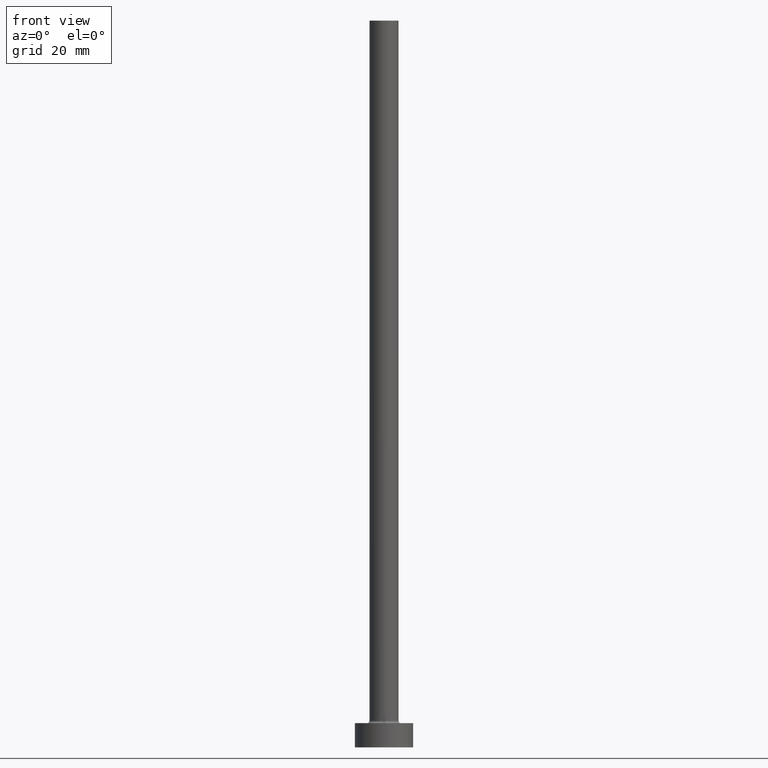
[diagram: clean part render]
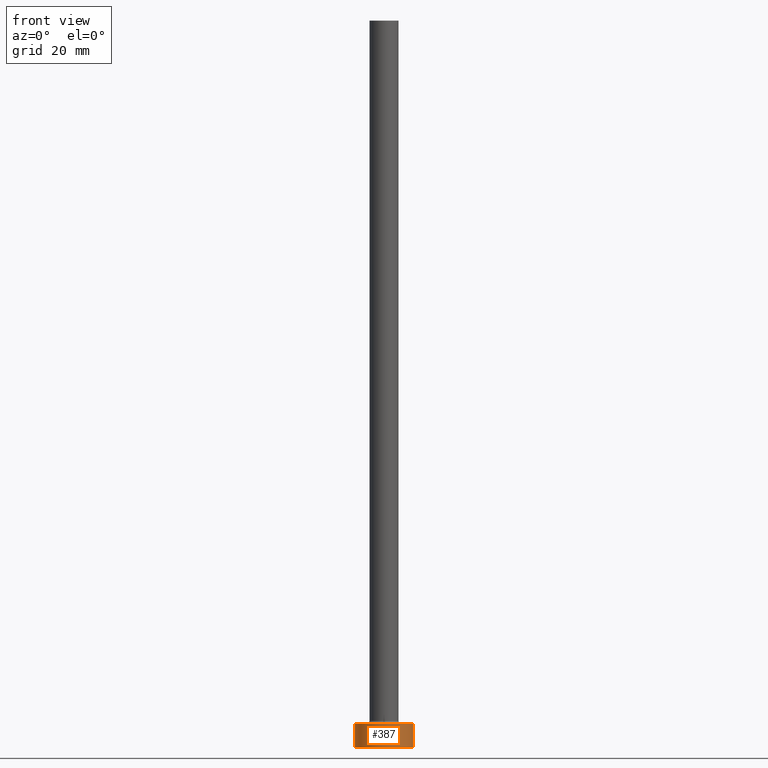
[diagram: same view with one face highlighted and labeled with its STEP entity id]
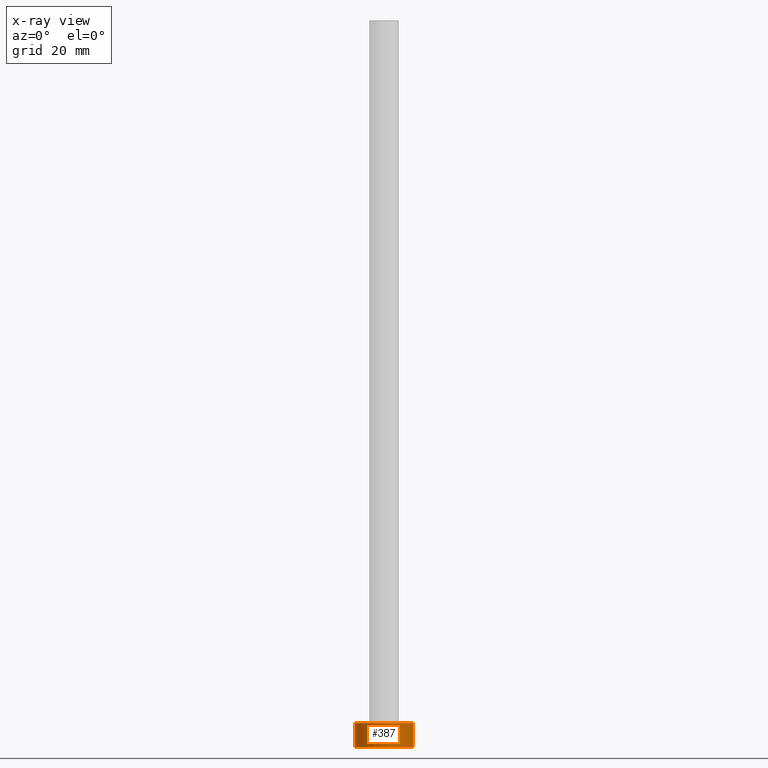
[diagram: x-ray of the same camera — body ghosted, the highlighted face saturated]
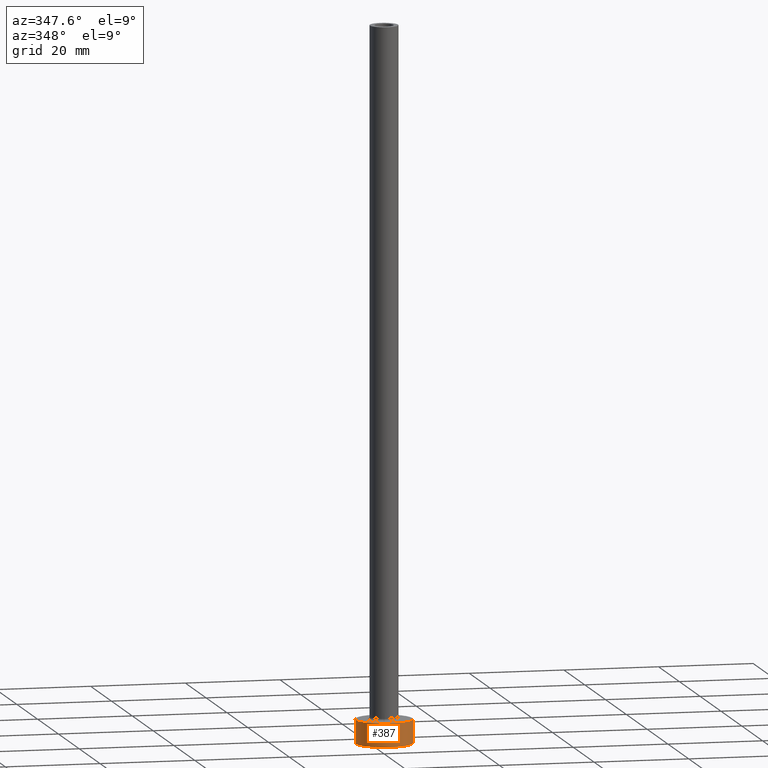
[diagram: same view with one face highlighted and labeled with its STEP entity id]
A machine part, front view. The second image highlights one B-rep face of the part: STEP entity #387.
The next image is the same camera in x-ray: the body ghosted, the highlighted face saturated — about 0% of this face is hidden behind the body in this view.
A second angle (auxiliary view) of the same face is appended — the face is thin or edge-on in the first view.
In plain terms, the highlighted cylindrical surface (edge-blend (fillet) strip) has radius 6 mm, axis along (-0, -0, -1).
Its self-contained STEP definition (entity closure, byte-faithful):
#9 = DIRECTION ( 'NONE',  ( 0.000000000000000000, 0.000000000000000000, 1.000000000000000000 ) ) ;
#17 = ORIENTED_EDGE ( 'NONE', *, *, #19, .T. ) ;
#18 = CARTESIAN_POINT ( 'NONE',  ( -6.000000000000000888, 0.000000000000000000, 5.000000000000000000 ) ) ;
#19 = EDGE_CURVE ( 'NONE', #90, #409, #284, .T. ) ;
#22 = VECTOR ( 'NONE', #170, 1000.000000000000000 ) ;
#28 = ORIENTED_EDGE ( 'NONE', *, *, #353, .F. ) ;
#41 = LINE ( 'NONE', #289, #59 ) ;
#53 = CARTESIAN_POINT ( 'NONE',  ( -6.000000000000000888, 0.000000000000000000, 0.000000000000000000 ) ) ;
#59 = VECTOR ( 'NONE', #255, 1000.000000000000000 ) ;
#60 = CARTESIAN_POINT ( 'NONE',  ( 6.000000000000000888, 7.347880794884120722E-16, 0.000000000000000000 ) ) ;
#71 = CYLINDRICAL_SURFACE ( 'NONE', #406, 6.000000000000000888 ) ;
#79 = CARTESIAN_POINT ( 'NONE',  ( 0.000000000000000000, 0.000000000000000000, 5.000000000000000000 ) ) ;
#81 = DIRECTION ( 'NONE',  ( 1.000000000000000000, 0.000000000000000000, 0.000000000000000000 ) ) ;
#90 = VERTEX_POINT ( 'NONE', #53 ) ;
#114 = DIRECTION ( 'NONE',  ( 0.000000000000000000, 0.000000000000000000, 1.000000000000000000 ) ) ;
#148 = CIRCLE ( 'NONE', #430, 6.000000000000000888 ) ;
#154 = CARTESIAN_POINT ( 'NONE',  ( 6.000000000000000888, 7.347880794884120722E-16, 5.000000000000000000 ) ) ;
#161 = DIRECTION ( 'NONE',  ( 1.000000000000000000, 0.000000000000000000, 0.000000000000000000 ) ) ;
#170 = DIRECTION ( 'NONE',  ( -0.000000000000000000, -0.000000000000000000, -1.000000000000000000 ) ) ;
#171 = AXIS2_PLACEMENT_3D ( 'NONE', #401, #9, #81 ) ;
#196 = ORIENTED_EDGE ( 'NONE', *, *, #281, .T. ) ;
#205 = FACE_OUTER_BOUND ( 'NONE', #264, .T. ) ;
#255 = DIRECTION ( 'NONE',  ( -0.000000000000000000, -0.000000000000000000, -1.000000000000000000 ) ) ;
#264 = EDGE_LOOP ( 'NONE', ( #28, #290, #196, #17 ) ) ;
#281 = EDGE_CURVE ( 'NONE', #346, #90, #41, .T. ) ;
#284 = CIRCLE ( 'NONE', #171, 6.000000000000000888 ) ;
#289 = CARTESIAN_POINT ( 'NONE',  ( -6.000000000000000888, 0.000000000000000000, 5.000000000000000000 ) ) ;
#290 = ORIENTED_EDGE ( 'NONE', *, *, #317, .F. ) ;
#297 = LINE ( 'NONE', #154, #22 ) ;
#317 = EDGE_CURVE ( 'NONE', #346, #354, #148, .T. ) ;
#337 = CARTESIAN_POINT ( 'NONE',  ( 0.000000000000000000, 0.000000000000000000, 5.000000000000000000 ) ) ;
#346 = VERTEX_POINT ( 'NONE', #18 ) ;
#350 = DIRECTION ( 'NONE',  ( -0.000000000000000000, -0.000000000000000000, -1.000000000000000000 ) ) ;
#353 = EDGE_CURVE ( 'NONE', #354, #409, #297, .T. ) ;
#354 = VERTEX_POINT ( 'NONE', #428 ) ;
#387 = ADVANCED_FACE ( 'NONE', ( #205 ), #71, .T. ) ;
#401 = CARTESIAN_POINT ( 'NONE',  ( 0.000000000000000000, 0.000000000000000000, 0.000000000000000000 ) ) ;
#406 = AXIS2_PLACEMENT_3D ( 'NONE', #79, #350, #417 ) ;
#409 = VERTEX_POINT ( 'NONE', #60 ) ;
#417 = DIRECTION ( 'NONE',  ( -1.000000000000000000, 0.000000000000000000, 0.000000000000000000 ) ) ;
#428 = CARTESIAN_POINT ( 'NONE',  ( 6.000000000000000888, 7.347880794884120722E-16, 5.000000000000000000 ) ) ;
#430 = AXIS2_PLACEMENT_3D ( 'NONE', #337, #114, #161 ) ;